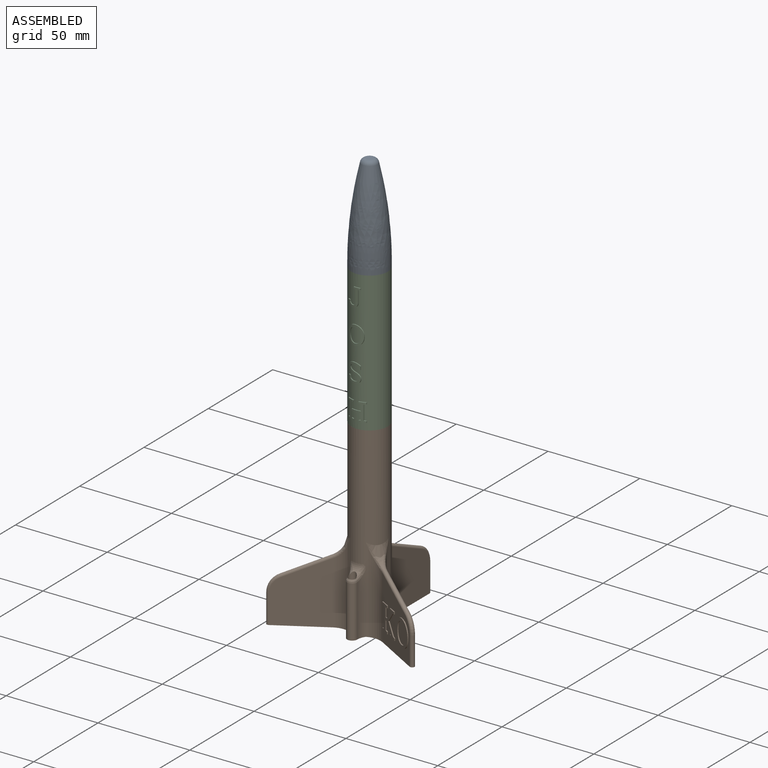
[diagram: assembled view]
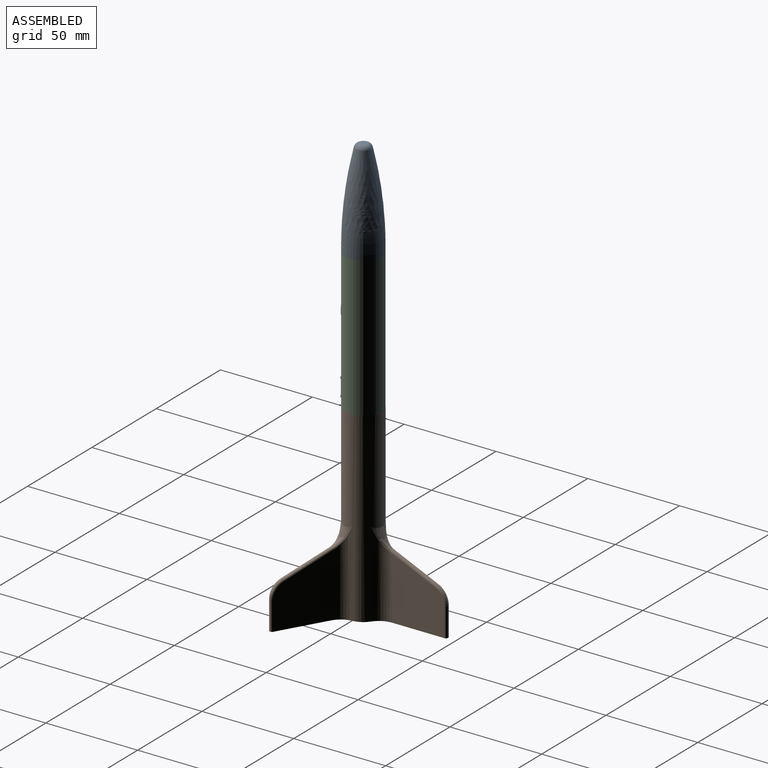
[diagram: assembled view, second angle]
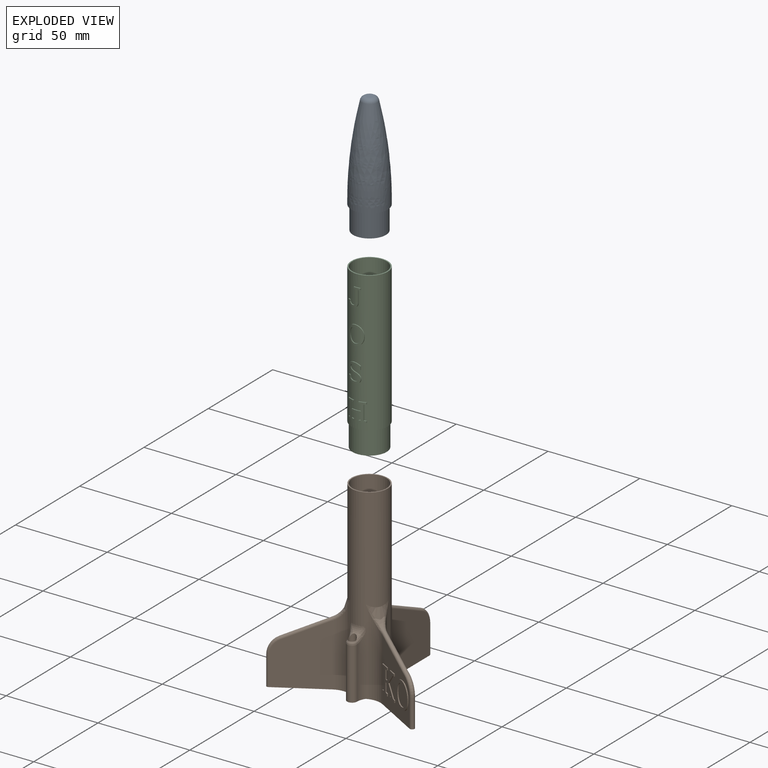
[diagram: exploded view]
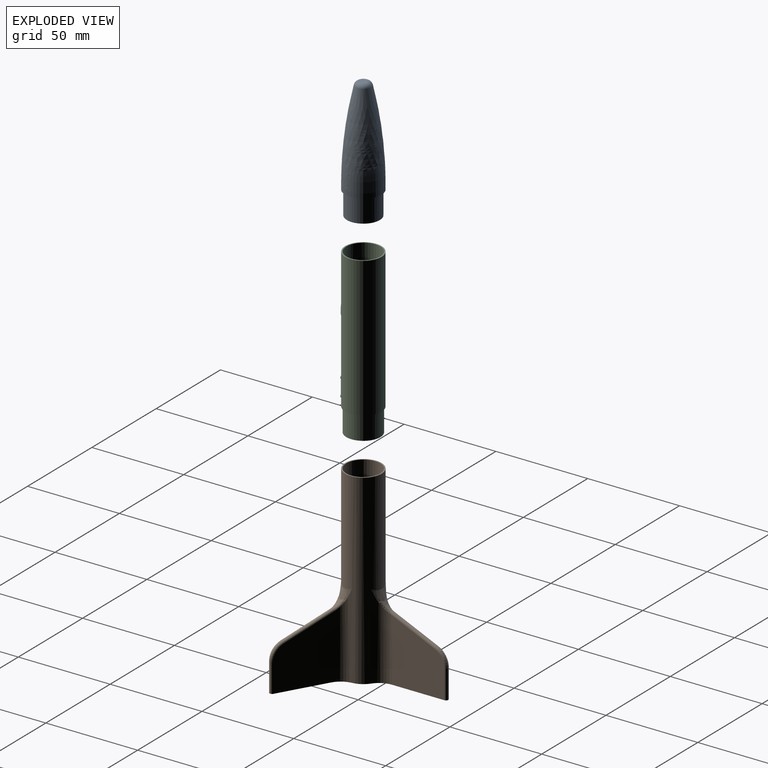
[diagram: exploded view, second angle]
ASSEMBLY  parts=3 mates=2
PART A: 18 faces, bbox 19.8x19.8x66 mm
  f0: plane 17.3x17.3mm, normal (0,0,1), area 16.3mm2, adj f2,f14
  f1: cylinder r=8.98mm len=17.96mm, axis (0,0,-1), area 716.5mm2, adj f3,f12
  f2: cylinder r=8.34mm len=16.69mm, axis (0,0,-1), area 721.1mm2, adj f0,f3,f6,f7,f8,f9,f10
  f3: plane 17.96x17.96mm, normal (0,0,-1), area 79.4mm2, adj f1,f2,f4,f5,f7,f8,f9,f10
  f4: plane 13.2x6.35mm, normal (0,-1,0), area 83.8mm2, adj f3,f6,f7,f10
  f5: plane 13.2x6.35mm, normal (0,1,0), area 83.8mm2, adj f3,f6,f8,f9
  f6: plane 16.69x5.99mm, normal (0,0,1), area 44.9mm2, adj f2,f4,f5,f7,f8,f9,f10
  f7: cylinder r=1.27mm len=6.35mm, axis (0,0,-1), area 15.6mm2, adj f2,f3,f4,f6
  f8: cylinder r=1.27mm len=6.35mm, axis (0,0,-1), area 15.6mm2, adj f2,f3,f5,f6
  f9: cylinder r=1.27mm len=6.35mm, axis (0,0,-1), area 15.6mm2, adj f2,f3,f5,f6
  f10: cylinder r=1.27mm len=6.35mm, axis (0,0,-1), area 15.6mm2, adj f2,f3,f4,f6
  f11: cylinder r=9.92mm len=19.84mm, axis (0,0,1), area 158.3mm2, adj f12,f15
  f12: plane 19.84x19.84mm, normal (0,0,-1), area 55.8mm2, adj f1,f11
  f13: plane 5.62x5.62mm, normal (0,0,-1), area 24.8mm2, adj f14
  f14: revolved ~49.53x17.3mm, area 2104mm2, adj f0,f13
  f15: revolved ~48.84x19.84mm, area 2487.6mm2, adj f11,f17
  f16: plane 3.61x3.61mm, normal (0,0,1), area 10.2mm2, adj f17
  f17: torus R=1.81mm, axis (0,0,-1), area 69.9mm2, adj f15,f16
PART B: 109 faces, bbox 81.7x71.2x101.6 mm
  f0: plane 33.95x24.66mm, normal (-0.5,-0.87,0), area 562.5mm2, adj f5,f29,f34,f35,f36,f57,f58,f59
  f1: cylinder r=9.28mm len=27.94mm, axis (0,0,-1), area 1629.8mm2, adj f4,f54
  f2: cylinder r=9.28mm len=60.96mm, axis (0,0,-1), area 3547.2mm2, adj f5,f53,f55,f56
  f3: cylinder r=9.92mm len=101.6mm, axis (0,0,-1), area 4385.8mm2, adj f4,f5,f9,f10,f11,f24,f25,f26
  f4: plane 19.84x19.84mm, normal (0,0,1), area 38.3mm2, adj f1,f3
  f5: plane 80.44x70.01mm, normal (0,0,-1), area 375.9mm2, adj f0,f2,f3,f6,f7,f9,f10,f18
  f6: plane 33.95x28.47mm, normal (1,0,0), area 782mm2, adj f5,f10,f16,f17,f18
  f7: plane 33.95x28.47mm, normal (-1,0,0), area 782mm2, adj f5,f9,f16,f17,f18
  f8: plane 1.04x0.46mm, normal (0,0.4,0.91), area 0mm2, adj f11,f14,f15
  f9: cylinder r=10.16mm len=46.45mm, axis (0,0,-1), area 377.4mm2, adj f3,f5,f7,f12,f14
  f10: cylinder r=10.16mm len=46.45mm, axis (0,0,-1), area 377.4mm2, adj f3,f5,f6,f13,f15
  f11: bspline ~22.86x10.87mm, area 53.7mm2, adj f3,f8,f12,f13
  f12: bspline ~12.66x9.4mm, area 10.6mm2, adj f9,f11,f14
  f13: bspline ~12.66x9.4mm, area 10.5mm2, adj f10,f11,f15
  f14: bspline ~4.26x2.91mm, area 2.1mm2, adj f8,f9,f12,f16
  f15: bspline ~4.26x2.91mm, area 2.1mm2, adj f8,f10,f13,f16
  f16: cylinder r=1.27mm len=23.68mm, axis (0,-0.91,0.4), area 101mm2, adj f6,f7,f14,f15,f17
  f17: torus R=8.89mm, axis (1,0,0), area 44.7mm2, adj f6,f7,f16,f18
  f18: cylinder r=1.27mm len=15.6mm, axis (0,0,1), area 62.2mm2, adj f5,f6,f7,f17
  f19: plane 0.93x0.56mm, normal (0.35,-0.2,0.91), area 0mm2, adj f28,f32,f33
  f20: plane 33.95x24.66mm, normal (0.5,0.87,0), area 782mm2, adj f5,f27,f34,f35,f36
  f21: plane 33.95x24.66mm, normal (0.5,-0.87,0), area 782mm2, adj f5,f24,f41,f42,f43
  f22: plane 0.93x0.56mm, normal (-0.35,-0.2,0.91), area 0mm2, adj f25,f39,f40
  f23: plane 33.95x24.66mm, normal (-0.5,0.87,0), area 782mm2, adj f5,f26,f41,f42,f43
  f24: cylinder r=10.16mm len=46.45mm, axis (0,0,-1), area 377.4mm2, adj f3,f5,f21,f37,f39,f44
  f25: bspline ~19.8x12.83mm, area 53.7mm2, adj f3,f22,f37,f38
  f26: cylinder r=10.16mm len=46.45mm, axis (0,0,-1), area 377.4mm2, adj f3,f5,f23,f38,f40
  f27: cylinder r=10.16mm len=46.45mm, axis (0,0,-1), area 377.4mm2, adj f3,f5,f20,f30,f32
  f28: bspline ~19.8x12.83mm, area 53.7mm2, adj f3,f19,f30,f31
  f29: cylinder r=10.16mm len=46.45mm, axis (0,0,-1), area 377.4mm2, adj f0,f3,f5,f31,f33,f45
  f30: bspline ~12.66x9.58mm, area 10.6mm2, adj f27,f28,f32
  f31: bspline ~12.66x10.96mm, area 10.5mm2, adj f28,f29,f33
  f32: bspline ~1.86x1.62mm, area 2.1mm2, adj f19,f27,f30,f34
  f33: bspline ~4.32x3.05mm, area 2.1mm2, adj f19,f29,f31,f34
  f34: cylinder r=1.27mm len=21.47mm, axis (-0.79,0.46,0.4), area 101mm2, adj f0,f20,f32,f33,f35
  f35: torus R=8.89mm, axis (-0.5,-0.87,0), area 44.7mm2, adj f0,f20,f34,f36
  f36: cylinder r=1.27mm len=15.6mm, axis (0,0,1), area 62.2mm2, adj f0,f5,f20,f35
  f37: bspline ~12.66x10.96mm, area 10.6mm2, adj f24,f25,f39
  f38: bspline ~12.66x9.58mm, area 10.5mm2, adj f25,f26,f40
  f39: bspline ~4.32x3.05mm, area 2.1mm2, adj f22,f24,f37,f41
  f40: bspline ~1.86x1.62mm, area 2.1mm2, adj f22,f26,f38,f41
  f41: cylinder r=1.27mm len=21.47mm, axis (0.79,0.46,0.4), area 101mm2, adj f21,f23,f39,f40,f42
  f42: torus R=8.89mm, axis (-0.5,0.87,0), area 44.7mm2, adj f21,f23,f41,f43
  f43: cylinder r=1.27mm len=15.6mm, axis (0,0,1), area 62.2mm2, adj f5,f21,f23,f42
  f44: cylinder r=7.73mm len=33.12mm, axis (0,0,-1), area 149.7mm2, adj f5,f24,f46,f51
  f45: cylinder r=7.73mm len=33.12mm, axis (0,0,-1), area 149.7mm2, adj f5,f29,f46,f49
  f46: cylinder r=2.74mm len=28.08mm, axis (0,0,-1), area 242mm2, adj f5,f44,f45,f50
  f47: cylinder r=2.1mm len=31.93mm, axis (0,0,-1), area 400.6mm2, adj f5,f48,f49,f50,f51
  f48: torus R=15mm, axis (0,0,-1), area 20mm2, adj f3,f47,f49,f51
  f49: bspline ~8x6.43mm, area 18.5mm2, adj f3,f45,f47,f48,f50
  f50: bspline ~5.49x2.74mm, area 13.4mm2, adj f46,f47,f49,f51
  f51: bspline ~7.92x5.73mm, area 17.4mm2, adj f3,f44,f47,f48,f50
  f52: cylinder r=7.62mm len=15.24mm, axis (0,0,1), area 608mm2, adj f53,f54
  f53: plane 18.57x18.57mm, normal (0,0,-1), area 88.4mm2, adj f2,f52
  f54: plane 18.57x18.57mm, normal (0,0,1), area 88.4mm2, adj f1,f52
  f55: cylinder r=2.54mm len=3.75mm, axis (0,0,-1), area 9.6mm2, adj f2,f5,f56
  f56: plane 3.75x1.02mm, normal (0,0,1), area 2.6mm2, adj f2,f55
  f57: plane 1.62x1.23mm, normal (-0.15,0.08,0.99), area 0.8mm2, adj f0,f58,f85,f86
  f58: plane 1.22x0.44mm, normal (-0.87,0.5,0), area 0.6mm2, adj f0,f57,f59,f86
  f59: plane 4.63x2.97mm, normal (0,0,-1), area 2.6mm2, adj f0,f58,f60,f86
  f60: plane 1.22x0.44mm, normal (0.87,-0.5,0), area 0.6mm2, adj f0,f59,f61,f86
  f61: plane 1.62x1.23mm, normal (0.15,-0.08,0.99), area 0.8mm2, adj f0,f60,f62,f86
  f62: plane 4.86x0.44mm, normal (0.87,-0.5,0), area 2.5mm2, adj f0,f61,f63,f86
  f63: plane 1.68x1.26mm, normal (0,0,-1), area 0.8mm2, adj f0,f62,f64,f86
  f64: plane 4.99x3.73mm, normal (-0.68,0.39,-0.63), area 3.3mm2, adj f0,f63,f65,f86
  f65: plane 1.18x0.98mm, normal (-0.11,0.06,0.99), area 0.5mm2, adj f0,f64,f66,f86
  f66: plane 1.22x0.44mm, normal (-0.87,0.5,0), area 0.6mm2, adj f0,f65,f67,f86
  f67: plane 4.25x2.75mm, normal (0,0,-1), area 2.3mm2, adj f0,f66,f68,f86
  f68: plane 1.22x0.44mm, normal (0.87,-0.5,0), area 0.6mm2, adj f0,f67,f69,f86
  f69: plane 1.4x1.1mm, normal (0.16,-0.09,0.98), area 0.7mm2, adj f0,f68,f70,f86
  f70: plane 5.81x4.32mm, normal (0.67,-0.39,0.63), area 3.8mm2, adj f0,f69,f71,f86
  f71: plane 5.33x3.98mm, normal (0.67,-0.39,-0.63), area 3.5mm2, adj f0,f70,f72,f86
  f72: plane 1.4x1.1mm, normal (0.16,-0.09,-0.98), area 0.7mm2, adj f0,f71,f73,f86
  f73: plane 1.23x0.44mm, normal (0.87,-0.5,0), area 0.6mm2, adj f0,f72,f74,f86
  f74: plane 4.12x2.67mm, normal (0,0,1), area 2.3mm2, adj f0,f73,f75,f86
  f75: plane 1.23x0.44mm, normal (-0.87,0.5,0), area 0.6mm2, adj f0,f74,f76,f86
  f76: plane 1.17x0.97mm, normal (-0.11,0.06,-0.99), area 0.5mm2, adj f0,f75,f77,f86
  f77: plane 4.86x3.66mm, normal (-0.67,0.39,0.63), area 3.2mm2, adj f0,f76,f78,f86
  f78: plane 1.52x1.17mm, normal (0,0,1), area 0.7mm2, adj f0,f77,f79,f86
  f79: plane 4.72x0.44mm, normal (0.87,-0.5,0), area 2.4mm2, adj f0,f78,f80,f86
  f80: plane 1.62x1.23mm, normal (0.15,-0.08,-0.99), area 0.8mm2, adj f0,f79,f81,f86
  f81: plane 1.23x0.44mm, normal (0.87,-0.5,0), area 0.6mm2, adj f0,f80,f82,f86
  f82: plane 4.63x2.97mm, normal (0,0,1), area 2.6mm2, adj f0,f81,f83,f86
  f83: plane 1.23x0.44mm, normal (-0.87,0.5,0), area 0.6mm2, adj f0,f82,f84,f86
  f84: plane 1.62x1.23mm, normal (-0.15,0.08,-0.99), area 0.8mm2, adj f0,f83,f85,f86
  f85: plane 11.08x0.44mm, normal (-0.87,0.5,0), area 5.6mm2, adj f0,f57,f84,f86
  f86: plane 14.06x10.98mm, normal (-0.5,-0.87,0), area 74.7mm2, adj f57,f58,f59,f60,f61,f62,f63,f64
  f87: extruded ~4x1.27mm, area 2.2mm2, adj f88,f106,f107,f108
  f88: plane 0.44x0.25mm, normal (-0.87,0.5,0), area 0.1mm2, adj f87,f89,f107,f108
  f89: extruded ~4.03x1.26mm, area 2.2mm2, adj f88,f90,f107,f108
  f90: extruded ~3.08x2.07mm, area 1.9mm2, adj f89,f91,f107,f108
  f91: extruded ~2.94x1.99mm, area 1.8mm2, adj f90,f92,f107,f108
  f92: extruded ~4.02x1.22mm, area 2.2mm2, adj f91,f93,f107,f108
  f93: plane 0.44x0.25mm, normal (0.87,-0.5,0), area 0.1mm2, adj f92,f94,f107,f108
  f94: extruded ~4x1.22mm, area 2.1mm2, adj f93,f95,f107,f108
  f95: extruded ~2.94x1.99mm, area 1.8mm2, adj f94,f106,f107,f108
  f96: extruded ~5.1x1.78mm, area 2.8mm2, adj f0,f97,f105,f107
  f97: plane 0.44x0.25mm, normal (0.87,-0.5,0), area 0.1mm2, adj f0,f96,f98,f107
  f98: extruded ~5.1x1.78mm, area 2.8mm2, adj f0,f97,f99,f107
  f99: extruded ~4.21x2.72mm, area 2.6mm2, adj f0,f98,f100,f107
  f100: extruded ~4.09x2.65mm, area 2.6mm2, adj f0,f99,f101,f107
  f101: extruded ~5.1x1.73mm, area 2.8mm2, adj f0,f100,f102,f107
  f102: plane 0.44x0.25mm, normal (-0.87,0.5,0), area 0.1mm2, adj f0,f101,f103,f107
  f103: extruded ~5.1x1.73mm, area 2.8mm2, adj f0,f102,f104,f107
  f104: extruded ~4.09x2.65mm, area 2.6mm2, adj f0,f103,f105,f107
  f105: extruded ~4.21x2.72mm, area 2.6mm2, adj f0,f96,f104,f107
  f106: extruded ~3.07x2.07mm, area 1.9mm2, adj f87,f95,f107,f108
  f107: plane 14.47x10.78mm, normal (-0.5,-0.87,0), area 64.8mm2, adj f87,f88,f89,f90,f91,f92,f93,f94
  f108: plane 11.35x7.49mm, normal (-0.5,-0.87,0), area 80mm2, adj f87,f88,f89,f90,f91,f92,f93,f94
PART C: 131 faces, bbox 20.2x20.5x89.1 mm
  f0: torus R=4.2mm, axis (0,0,-1), area 141.9mm2, adj f5,f6,f115,f116,f130
  f1: cylinder r=9.92mm len=76.2mm, axis (0,0,-1), area 4576.2mm2, adj f2,f3,f16,f17,f18,f19,f20,f21
  f2: plane 19.84x19.84mm, normal (0,0,1), area 38.3mm2, adj f1,f130
  f3: plane 19.84x19.84mm, normal (0,0,-1), area 38.3mm2, adj f1,f4
  f4: cylinder r=9.28mm len=18.57mm, axis (0,0,1), area 740.8mm2, adj f3,f7
  f5: cylinder r=8.47mm len=19.05mm, axis (0,0,1), area 999.7mm2, adj f0,f6,f7,f8,f115,f118,f119,f120
  f6: cylinder r=8.47mm len=1.67mm, axis (0,0,1), area 2mm2, adj f0,f5,f116,f124
  f7: plane 18.57x18.57mm, normal (0,0,-1), area 45.3mm2, adj f4,f5
  f8: torus R=4.2mm, axis (0,0,-1), area 10.2mm2, adj f5,f117,f118,f127
  f9: cylinder r=4.19mm len=26.67mm, axis (0,0,1), area 227.1mm2, adj f11,f12,f13,f14,f130
  f10: cylinder r=1.65mm len=23.94mm, axis (0,0,1), area 216.3mm2, adj f13,f14
  f11: plane 2.66x0.38mm, normal (0,0,-1), area 0.7mm2, adj f9,f14
  f12: plane 2.66x0.38mm, normal (0,0,1), area 0.7mm2, adj f9,f13
  f13: torus R=5.47mm, axis (0,0,1), area 31mm2, adj f9,f10,f12,f130
  f14: torus R=5.47mm, axis (0,0,1), area 31mm2, adj f9,f10,f11,f130
  f15: cylinder r=9.92mm len=10.18mm, axis (0,0,-1), area 21.9mm2, adj f16,f17,f18,f19,f20,f21,f22,f23
  f16: plane 0.88x0.51mm, normal (-1,0,0), area 0.4mm2, adj f1,f15,f31,f32
  f17: extruded ~1.39x0.69mm, area 0.8mm2, adj f1,f15,f18,f30
  f18: extruded ~1.33x0.89mm, area 0.7mm2, adj f1,f15,f17,f19
  f19: extruded ~1.23x0.69mm, area 0.7mm2, adj f1,f15,f18,f20
  f20: extruded ~1.35x0.54mm, area 0.7mm2, adj f1,f15,f19,f21
  f21: plane 6.19x0.51mm, normal (-1,0,0), area 3.1mm2, adj f1,f15,f20,f31
  f22: plane 6.19x0.51mm, normal (1,0,0), area 3.1mm2, adj f1,f15,f23,f28
  f23: extruded ~2.13x0.85mm, area 1.2mm2, adj f1,f15,f22,f24
  f24: extruded ~2.21x0.79mm, area 1.2mm2, adj f1,f15,f23,f25
  f25: extruded ~2.3x1.3mm, area 1.3mm2, adj f1,f15,f24,f26
  f26: extruded ~2.13x0.96mm, area 1.2mm2, adj f1,f15,f25,f29
  f27: plane 0.88x0.51mm, normal (1,0,0), area 0.4mm2, adj f1,f15,f28,f32
  f28: plane 1.13x0.69mm, normal (0.17,0,-0.99), area 0.6mm2, adj f1,f15,f22,f27
  f29: plane 0.52x0.04mm, normal (-0.95,0,0.3), area 0mm2, adj f1,f15,f26,f30
  f30: plane 1.3x1.17mm, normal (0,0,1), area 0.7mm2, adj f1,f15,f17,f29
  f31: plane 1.12x0.61mm, normal (-0.17,0,-0.99), area 0.6mm2, adj f1,f15,f16,f21
  f32: plane 3.61x0.74mm, normal (0,0,1), area 1.8mm2, adj f1,f15,f16,f27
  f33: extruded ~3.26x1.45mm, area 1.9mm2, adj f1,f34,f42,f43
  f34: extruded ~3.16x1.45mm, area 1.8mm2, adj f1,f33,f35,f43
  f35: extruded ~3.64x1.21mm, area 2mm2, adj f1,f34,f36,f43
  f36: plane 0.51x0.14mm, normal (-1,0,0), area 0.1mm2, adj f1,f35,f37,f43
  f37: extruded ~3.64x1.21mm, area 2mm2, adj f1,f36,f38,f43
  f38: extruded ~3.16x1.45mm, area 1.8mm2, adj f1,f37,f39,f43
  f39: extruded ~3.26x1.45mm, area 1.9mm2, adj f1,f38,f40,f43
  f40: extruded ~3.64x1.26mm, area 2mm2, adj f1,f39,f41,f43
  f41: plane 0.51x0.14mm, normal (1,0,0), area 0.1mm2, adj f1,f40,f42,f43
  f42: extruded ~3.64x1.26mm, area 2mm2, adj f1,f33,f41,f43
  f43: cylinder r=9.92mm len=10.32mm, axis (0,0,-1), area 34.6mm2, adj f33,f34,f35,f36,f37,f38,f39,f40
  f44: extruded ~2.32x1.11mm, area 1.4mm2, adj f43,f45,f53,f54
  f45: extruded ~2.21x1.11mm, area 1.3mm2, adj f43,f44,f46,f54
  f46: extruded ~2.85x0.8mm, area 1.5mm2, adj f43,f45,f47,f54
  f47: plane 0.51x0.16mm, normal (1,0,0), area 0.1mm2, adj f43,f46,f48,f54
  f48: extruded ~2.87x0.8mm, area 1.5mm2, adj f43,f47,f49,f54
  f49: extruded ~2.21x1.11mm, area 1.3mm2, adj f43,f48,f50,f54
  f50: extruded ~2.33x1.1mm, area 1.4mm2, adj f43,f49,f51,f54
  f51: extruded ~2.87x0.83mm, area 1.5mm2, adj f43,f50,f52,f54
  f52: plane 0.51x0.16mm, normal (-1,0,0), area 0.1mm2, adj f43,f51,f53,f54
  f53: extruded ~2.85x0.84mm, area 1.5mm2, adj f43,f44,f52,f54
  f54: cylinder r=9.92mm len=8.09mm, axis (0,0,-1), area 41.3mm2, adj f44,f45,f46,f47,f48,f49,f50,f51
  f55: cylinder r=9.92mm len=10.32mm, axis (0,0,-1), area 31.4mm2, adj f56,f57,f58,f59,f60,f61,f62,f63
  f56: extruded ~0.94x0.81mm, area 0.5mm2, adj f1,f55,f57,f84
  f57: extruded ~1.3x0.76mm, area 0.7mm2, adj f1,f55,f56,f58
  f58: extruded ~1.62x0.58mm, area 0.9mm2, adj f1,f55,f57,f59
  f59: extruded ~1.18x0.6mm, area 0.7mm2, adj f1,f55,f58,f60
  f60: extruded ~1.15x0.55mm, area 0.7mm2, adj f1,f55,f59,f61
  f61: extruded ~1.83x0.78mm, area 1mm2, adj f1,f55,f60,f62
  f62: extruded ~2.49x1.19mm, area 1.4mm2, adj f1,f55,f61,f63
  f63: extruded ~1.85x0.94mm, area 1.1mm2, adj f1,f55,f62,f64
  f64: extruded ~1.96x1mm, area 1.2mm2, adj f1,f55,f63,f65
  f65: extruded ~2.6x1.18mm, area 1.4mm2, adj f1,f55,f64,f66
  f66: extruded ~1.92x0.55mm, area 1mm2, adj f1,f55,f65,f67
  f67: extruded ~1.39x0.88mm, area 0.8mm2, adj f1,f55,f66,f68
  f68: plane 1.87x0.51mm, normal (1,0,0), area 0.9mm2, adj f1,f55,f67,f85
  f69: extruded ~0.83x0.55mm, area 0.5mm2, adj f1,f55,f70,f82
  f70: extruded ~1.2x0.57mm, area 0.6mm2, adj f1,f55,f69,f71
  f71: extruded ~1.66x0.85mm, area 0.9mm2, adj f1,f55,f70,f72
  f72: extruded ~1.2x0.7mm, area 0.7mm2, adj f1,f55,f71,f73
  f73: extruded ~1.09x0.7mm, area 0.7mm2, adj f1,f55,f72,f74
  f74: extruded ~1.91x0.87mm, area 1mm2, adj f1,f55,f73,f75
  f75: extruded ~2.41x1.16mm, area 1.4mm2, adj f1,f55,f74,f76
  f76: extruded ~1.9x0.82mm, area 1.1mm2, adj f1,f55,f75,f77
  f77: extruded ~1.95x0.99mm, area 1.2mm2, adj f1,f55,f76,f78
  f78: extruded ~2.59x0.74mm, area 1.4mm2, adj f1,f55,f77,f79
  f79: extruded ~2.06x0.99mm, area 1.1mm2, adj f1,f55,f78,f80
  f80: extruded ~1.46x1.16mm, area 0.9mm2, adj f1,f55,f79,f81
  f81: plane 1.87x0.51mm, normal (-1,0,0), area 0.9mm2, adj f1,f55,f80,f83
  f82: plane 1.43x0.53mm, normal (-0.98,0,-0.18), area 0.7mm2, adj f1,f55,f69,f85
  f83: plane 1.02x0.99mm, normal (0,0,1), area 0.5mm2, adj f1,f55,f81,f84
  f84: plane 1.44x0.61mm, normal (0.98,0,0.18), area 0.7mm2, adj f1,f55,f56,f83
  f85: plane 1.03x0.68mm, normal (0,0,-1), area 0.5mm2, adj f1,f55,f68,f82
  f86: plane 0.88x0.51mm, normal (-1,0,0), area 0.4mm2, adj f1,f101,f102,f114
  f87: plane 0.88x0.51mm, normal (1,0,0), area 0.4mm2, adj f1,f101,f109,f110
  f88: plane 0.88x0.51mm, normal (-1,0,0), area 0.4mm2, adj f1,f101,f110,f111
  f89: plane 3.47x0.51mm, normal (-1,0,0), area 1.8mm2, adj f1,f101,f111,f112
  f90: plane 3.47x0.51mm, normal (1,0,0), area 1.8mm2, adj f1,f101,f112,f113
  f91: plane 0.88x0.51mm, normal (1,0,0), area 0.4mm2, adj f1,f101,f113,f114
  f92: plane 0.87x0.51mm, normal (-1,0,0), area 0.4mm2, adj f1,f101,f103,f104
  f93: plane 0.87x0.51mm, normal (1,0,0), area 0.4mm2, adj f1,f101,f104,f105
  f94: plane 0.87x0.51mm, normal (-1,0,0), area 0.4mm2, adj f1,f101,f106,f107
  f95: plane 0.87x0.51mm, normal (1,0,0), area 0.4mm2, adj f1,f101,f107,f108
  f96: plane 4.86x0.86mm, normal (0,0,-1), area 2.5mm2, adj f1,f98,f99,f101
  f97: plane 7.9x0.51mm, normal (-1,0,0), area 4mm2, adj f1,f101,f102,f103
  f98: plane 3.37x0.51mm, normal (1,0,0), area 1.7mm2, adj f1,f96,f101,f105
  f99: plane 3.37x0.51mm, normal (-1,0,0), area 1.7mm2, adj f1,f96,f101,f106
  f100: plane 7.9x0.51mm, normal (1,0,0), area 4mm2, adj f1,f101,f108,f109
  f101: cylinder r=9.92mm len=10.03mm, axis (0,0,-1), area 43.3mm2, adj f86,f87,f88,f89,f90,f91,f92,f93
  f102: plane 1.13x1.09mm, normal (-0.17,0,-0.99), area 0.6mm2, adj f1,f86,f97,f101
  f103: plane 1.13x1.09mm, normal (-0.17,0,0.99), area 0.6mm2, adj f1,f92,f97,f101
  f104: plane 3.6x1.81mm, normal (0,0,-1), area 1.8mm2, adj f1,f92,f93,f101
  f105: plane 1.12x0.75mm, normal (0.17,0,0.99), area 0.6mm2, adj f1,f93,f98,f101
  f106: plane 1.12x0.7mm, normal (-0.17,0,0.99), area 0.6mm2, adj f1,f94,f99,f101
  f107: plane 3.6x1.64mm, normal (0,0,-1), area 1.8mm2, adj f1,f94,f95,f101
  f108: plane 1.13x1.03mm, normal (0.17,0,0.99), area 0.6mm2, adj f1,f95,f100,f101
  f109: plane 1.13x1.03mm, normal (0.17,0,-0.99), area 0.6mm2, adj f1,f87,f100,f101
  f110: plane 3.6x1.64mm, normal (0,0,1), area 1.8mm2, adj f1,f87,f88,f101
  f111: plane 1.12x0.7mm, normal (-0.17,0,-0.99), area 0.6mm2, adj f1,f88,f89,f101
  f112: plane 4.86x0.86mm, normal (0,0,1), area 2.5mm2, adj f1,f89,f90,f101
  f113: plane 1.12x0.75mm, normal (0.17,0,-0.99), area 0.6mm2, adj f1,f90,f91,f101
  f114: plane 3.6x1.81mm, normal (0,0,1), area 1.8mm2, adj f1,f86,f91,f101
  f115: plane 4.24x0.92mm, normal (1,0,0), area 2.1mm2, adj f0,f5,f119,f130
  f116: plane 4.43x1.09mm, normal (-1,0,0), area 2.1mm2, adj f0,f6,f124,f130
  f117: plane 4.86x0.46mm, normal (0,0,1), area 0.4mm2, adj f8,f118,f127,f130
  f118: plane 3.44x0.92mm, normal (-1,0,0), area 2mm2, adj f5,f8,f117,f121,f130
  f119: plane 1.63x1.13mm, normal (0.17,0,-0.99), area 1.1mm2, adj f5,f115,f125,f130
  f120: plane 3.6x2.4mm, normal (0,0,1), area 3.2mm2, adj f5,f125,f126,f130
  f121: plane 1.12x1.11mm, normal (-0.17,0,-0.99), area 1mm2, adj f5,f118,f126,f130
  f122: plane 1.12x1.05mm, normal (0.17,0,-0.99), area 0.9mm2, adj f5,f127,f128,f130
  f123: plane 3.6x2.18mm, normal (0,0,1), area 3.1mm2, adj f5,f128,f129,f130
  f124: plane 1.53x1.13mm, normal (-0.17,0,-0.99), area 1mm2, adj f6,f116,f129,f130
  f125: plane 0.99x0.87mm, normal (1,0,0), area 0.9mm2, adj f5,f119,f120,f130
  f126: plane 0.87x0.82mm, normal (-1,0,0), area 0.7mm2, adj f5,f120,f121,f130
  f127: plane 3.43x0.9mm, normal (1,0,0), area 2mm2, adj f5,f8,f117,f122,f130
  f128: plane 0.87x0.82mm, normal (1,0,0), area 0.7mm2, adj f5,f122,f123,f130
  f129: plane 0.96x0.87mm, normal (-1,0,0), area 0.8mm2, adj f5,f123,f124,f130
  f130: cylinder r=9.28mm len=72.39mm, axis (0,0,-1), area 3712.4mm2, adj f0,f2,f9,f13,f14,f115,f116,f117
PLACE A t=(-66.22,41.55,86.65)mm
PLACE B t=(-66.22,41.55,-78.45)mm
PLACE C t=(-66.22,41.55,23.15)mm
MATE fastened C.f4 <-> A.f11  axis (0,0,1) through (-66.22,41.55,99.35)mm
MATE fastened B.f3 <-> C.f1  axis (0,0,1) through (-66.22,41.55,23.15)mm
